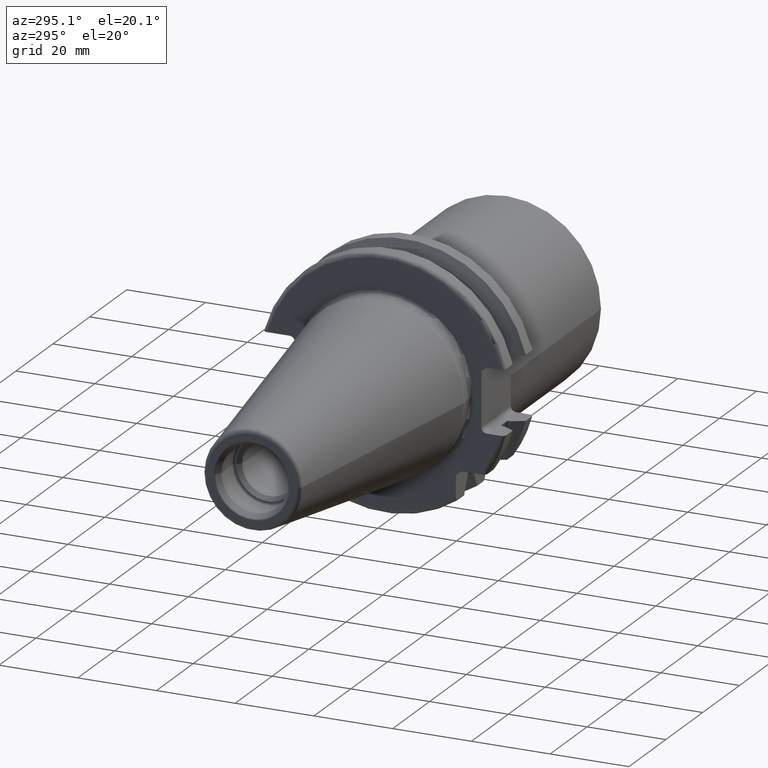
[diagram: clean part render]
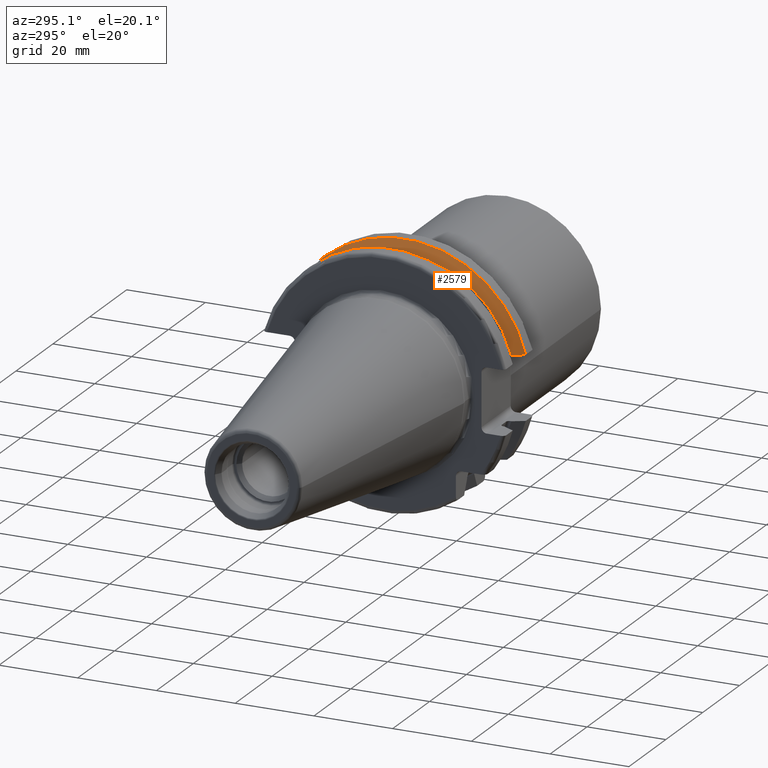
[diagram: same view with one face highlighted and labeled with its STEP entity id]
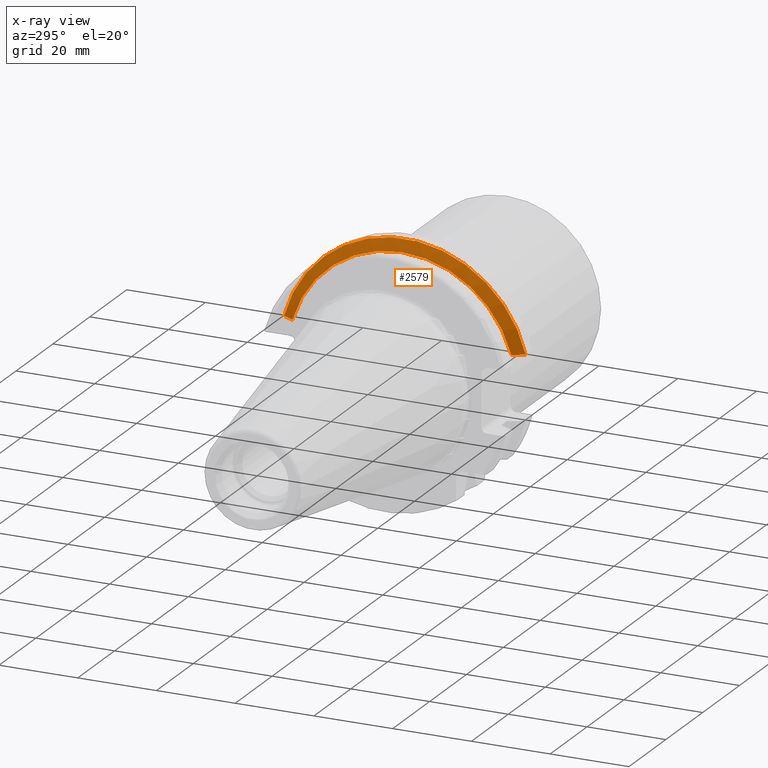
[diagram: x-ray of the same camera — body ghosted, the highlighted face saturated]
A machine part, auxiliary view. The second image highlights one B-rep face of the part: STEP entity #2579.
The next image is the same camera in x-ray: the body ghosted, the highlighted face saturated — about 0% of this face is hidden behind the body in this view.
In plain terms, the highlighted conical surface has half-angle 60 deg.
Its self-contained STEP definition (entity closure, byte-faithful):
#625=CARTESIAN_POINT('',(1.470405352042E1,0.E0,0.E0));
#626=DIRECTION('',(1.E0,0.E0,0.E0));
#627=DIRECTION('',(0.E0,9.669363825036E-1,2.550177095632E-1));
#628=AXIS2_PLACEMENT_3D('',#625,#626,#627);
#789=CARTESIAN_POINT('',(1.470405352042E1,3.071231684927E1,8.1E0));
#790=CARTESIAN_POINT('',(1.451824513517E1,3.037948258059E1,8.1E0));
#791=CARTESIAN_POINT('',(1.415074718503E1,2.972048825911E1,8.1E0));
#792=CARTESIAN_POINT('',(1.361195207986E1,2.875212438619E1,8.1E0));
#793=CARTESIAN_POINT('',(1.326094199325E1,2.811971443922E1,8.1E0));
#794=CARTESIAN_POINT('',(1.30875E1,2.780681820245E1,8.1E0));
#796=CARTESIAN_POINT('',(1.30875E1,-2.780681820245E1,8.1E0));
#797=CARTESIAN_POINT('',(1.326086175289E1,-2.811956968242E1,8.1E0));
#798=CARTESIAN_POINT('',(1.361176448515E1,-2.875178670793E1,8.1E0));
#799=CARTESIAN_POINT('',(1.415055493375E1,-2.972014324708E1,8.1E0));
#800=CARTESIAN_POINT('',(1.451816260441E1,-3.037933474515E1,8.1E0));
#801=CARTESIAN_POINT('',(1.470405352042E1,-3.071231684927E1,8.1E0));
#803=CARTESIAN_POINT('',(1.30875E1,0.E0,0.E0));
#804=DIRECTION('',(1.E0,0.E0,0.E0));
#805=DIRECTION('',(0.E0,9.600957415706E-1,2.796715341576E-1));
#806=AXIS2_PLACEMENT_3D('',#803,#804,#805);
#1468=CARTESIAN_POINT('',(1.30875E1,2.780681820245E1,8.1E0));
#1469=VERTEX_POINT('',#1468);
#1478=CARTESIAN_POINT('',(1.30875E1,-2.780681820245E1,8.1E0));
#1479=VERTEX_POINT('',#1478);
#1488=VERTEX_POINT('',#789);
#1489=VERTEX_POINT('',#801);
#2568=CARTESIAN_POINT('',(1.389577676021E1,0.E0,0.E0));
#2569=DIRECTION('',(1.E0,0.E0,0.E0));
#2570=DIRECTION('',(0.E0,-1.E0,0.E0));
#2571=AXIS2_PLACEMENT_3D('',#2568,#2569,#2570);
#2572=CONICAL_SURFACE('',#2571,3.036252358474E1,6.E1);
#2573=ORIENTED_EDGE('',*,*,#1917,.F.);
#2574=ORIENTED_EDGE('',*,*,#2425,.T.);
#2575=ORIENTED_EDGE('',*,*,#1979,.F.);
#2576=ORIENTED_EDGE('',*,*,#2531,.F.);
#2577=EDGE_LOOP('',(#2573,#2574,#2575,#2576));
#2578=FACE_OUTER_BOUND('',#2577,.F.);
#2579=ADVANCED_FACE('',(#2578),#2572,.T.);
#629=CIRCLE('',#628,3.17625E1);
#795=B_SPLINE_CURVE_WITH_KNOTS('',3,(#789,#790,#791,#792,#793,#794),
.UNSPECIFIED.,.F.,.F.,(4,1,1,4),(0.E0,3.333333333333E-1,6.666666666667E-1,1.E0),
.UNSPECIFIED.);
#802=B_SPLINE_CURVE_WITH_KNOTS('',3,(#796,#797,#798,#799,#800,#801),
.UNSPECIFIED.,.F.,.F.,(4,1,1,4),(0.E0,3.333333333333E-1,6.666666666667E-1,1.E0),
.UNSPECIFIED.);
#807=CIRCLE('',#806,2.896254716948E1);
#1917=EDGE_CURVE('',#1488,#1469,#795,.T.);
#1979=EDGE_CURVE('',#1479,#1489,#802,.T.);
#2425=EDGE_CURVE('',#1488,#1489,#629,.T.);
#2531=EDGE_CURVE('',#1469,#1479,#807,.T.);